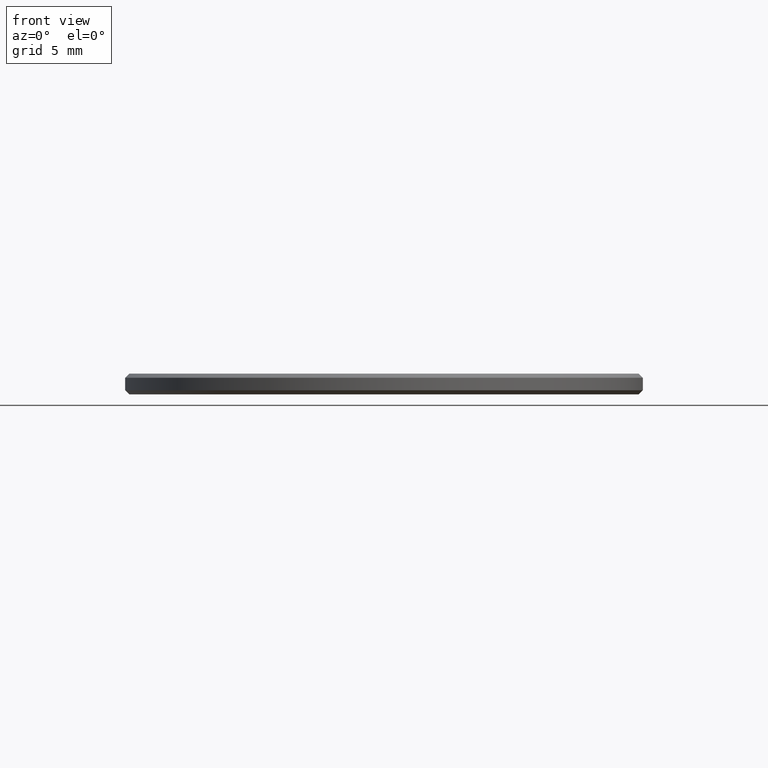
[diagram: clean part render]
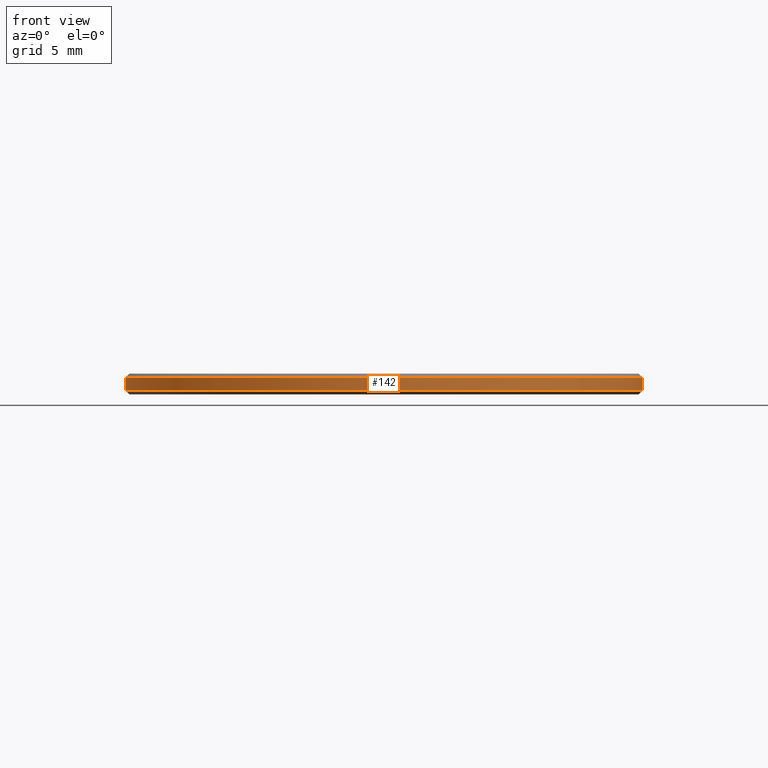
[diagram: same view with one face highlighted and labeled with its STEP entity id]
A machine part, front view. The second image highlights one B-rep face of the part: STEP entity #142.
In plain terms, the highlighted cylindrical surface (partial cylindrical patch) has radius 12.5 mm, axis along (-0, -0, -1).
Its self-contained STEP definition (entity closure, byte-faithful):
#4 = VERTEX_POINT ( 'NONE', #64 ) ;
#5 = VERTEX_POINT ( 'NONE', #122 ) ;
#6 = DIRECTION ( 'NONE',  ( 1.000000000000000000, 0.000000000000000000, 0.000000000000000000 ) ) ;
#7 = EDGE_CURVE ( 'NONE', #11, #100, #212, .T. ) ;
#9 = CARTESIAN_POINT ( 'NONE',  ( 0.000000000000000000, 0.000000000000000000, 0.8000000000000029310 ) ) ;
#11 = VERTEX_POINT ( 'NONE', #81 ) ;
#16 = DIRECTION ( 'NONE',  ( -0.000000000000000000, -0.000000000000000000, -1.000000000000000000 ) ) ;
#18 = DIRECTION ( 'NONE',  ( -0.000000000000000000, -0.000000000000000000, -1.000000000000000000 ) ) ;
#24 = EDGE_CURVE ( 'NONE', #5, #4, #131, .T. ) ;
#33 = CARTESIAN_POINT ( 'NONE',  ( 0.000000000000000000, 0.000000000000000000, 1.000000000000000000 ) ) ;
#35 = LINE ( 'NONE', #182, #192 ) ;
#45 = EDGE_LOOP ( 'NONE', ( #191, #123, #103, #232 ) ) ;
#54 = DIRECTION ( 'NONE',  ( -0.000000000000000000, -0.000000000000000000, -1.000000000000000000 ) ) ;
#64 = CARTESIAN_POINT ( 'NONE',  ( 12.50000000000000000, 1.530808498934191521E-15, 0.1999999999999987899 ) ) ;
#78 = DIRECTION ( 'NONE',  ( 1.000000000000000000, 0.000000000000000000, 0.000000000000000000 ) ) ;
#81 = CARTESIAN_POINT ( 'NONE',  ( 12.50000000000000000, 1.530808498934191521E-15, 0.8000000000000029310 ) ) ;
#90 = LINE ( 'NONE', #239, #130 ) ;
#100 = VERTEX_POINT ( 'NONE', #234 ) ;
#103 = ORIENTED_EDGE ( 'NONE', *, *, #210, .T. ) ;
#108 = AXIS2_PLACEMENT_3D ( 'NONE', #9, #156, #78 ) ;
#122 = CARTESIAN_POINT ( 'NONE',  ( -12.50000000000000000, 0.000000000000000000, 0.1999999999999987899 ) ) ;
#123 = ORIENTED_EDGE ( 'NONE', *, *, #7, .T. ) ;
#130 = VECTOR ( 'NONE', #54, 1000.000000000000000 ) ;
#131 = CIRCLE ( 'NONE', #231, 12.50000000000000000 ) ;
#141 = FACE_OUTER_BOUND ( 'NONE', #45, .T. ) ;
#142 = ADVANCED_FACE ( 'NONE', ( #141 ), #199, .T. ) ;
#153 = DIRECTION ( 'NONE',  ( -0.000000000000000000, -0.000000000000000000, 1.000000000000000000 ) ) ;
#155 = AXIS2_PLACEMENT_3D ( 'NONE', #33, #16, #214 ) ;
#156 = DIRECTION ( 'NONE',  ( 0.000000000000000000, 0.000000000000000000, -1.000000000000000000 ) ) ;
#170 = CARTESIAN_POINT ( 'NONE',  ( 0.000000000000000000, 0.000000000000000000, 0.1999999999999987899 ) ) ;
#182 = CARTESIAN_POINT ( 'NONE',  ( -12.50000000000000000, 0.000000000000000000, 1.000000000000000000 ) ) ;
#191 = ORIENTED_EDGE ( 'NONE', *, *, #221, .F. ) ;
#192 = VECTOR ( 'NONE', #18, 1000.000000000000000 ) ;
#199 = CYLINDRICAL_SURFACE ( 'NONE', #155, 12.50000000000000000 ) ;
#210 = EDGE_CURVE ( 'NONE', #100, #5, #35, .T. ) ;
#212 = CIRCLE ( 'NONE', #108, 12.50000000000000000 ) ;
#214 = DIRECTION ( 'NONE',  ( -1.000000000000000000, 0.000000000000000000, 0.000000000000000000 ) ) ;
#221 = EDGE_CURVE ( 'NONE', #11, #4, #90, .T. ) ;
#231 = AXIS2_PLACEMENT_3D ( 'NONE', #170, #153, #6 ) ;
#232 = ORIENTED_EDGE ( 'NONE', *, *, #24, .T. ) ;
#234 = CARTESIAN_POINT ( 'NONE',  ( -12.50000000000000000, 0.000000000000000000, 0.8000000000000029310 ) ) ;
#239 = CARTESIAN_POINT ( 'NONE',  ( 12.50000000000000000, 1.530808498934191521E-15, 1.000000000000000000 ) ) ;